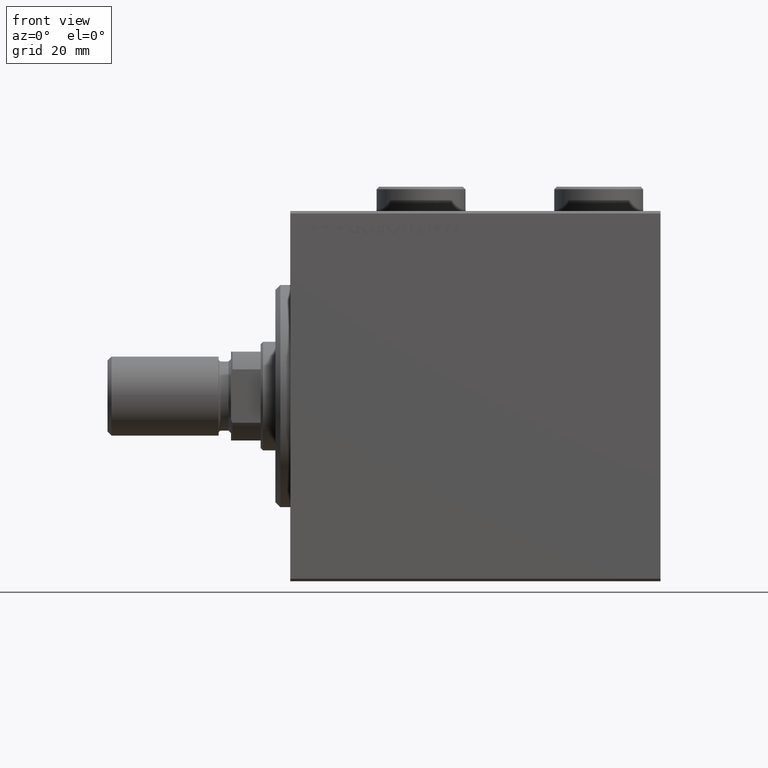
[diagram: clean part render]
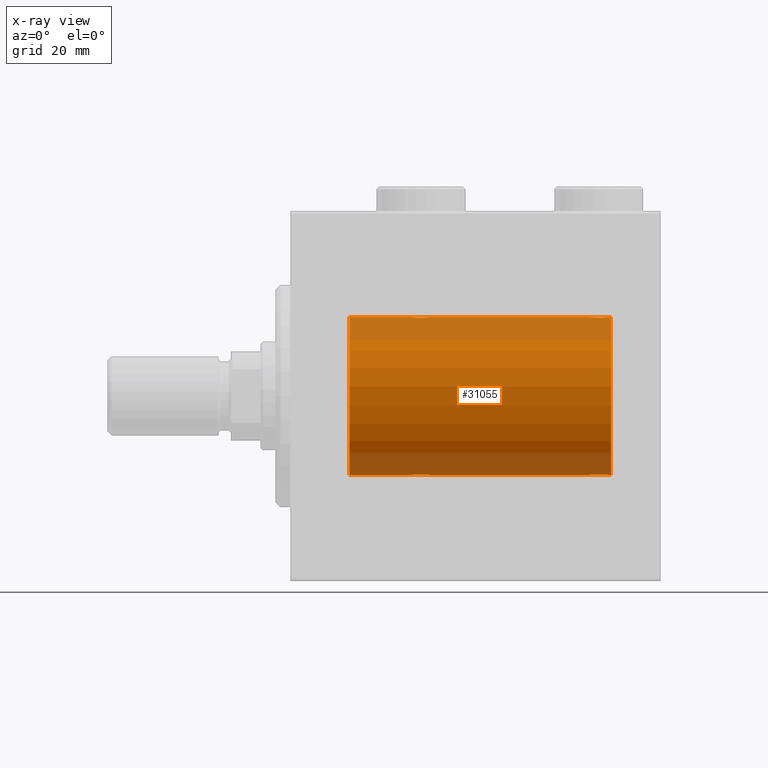
[diagram: x-ray — body ghosted, one internal face saturated and labeled with its STEP entity id]
A machine part, front view, then the same camera in x-ray: the body is ghosted and one INTERNAL B-rep face — a face not visible from any outside direction — is saturated and labeled: STEP entity #31055.
In plain terms, the highlighted cylindrical surface (partial cylindrical patch) has radius 16 mm, axis along (-1, -0, -0).
Its self-contained STEP definition (entity closure, byte-faithful):
#200 = VERTEX_POINT ( 'NONE', #42816 ) ;
#208 = CARTESIAN_POINT ( 'NONE',  ( 24.50000000000000355, -0.2611263091397209579, 16.00000000000000000 ) ) ;
#384 = CARTESIAN_POINT ( 'NONE',  ( 60.90236864042802267, -1.231048876942808956, -15.95364199493483426 ) ) ;
#900 = CARTESIAN_POINT ( 'NONE',  ( 27.82104334803405266, -1.507256214862787713, 15.92911555180482530 ) ) ;
#1117 = CARTESIAN_POINT ( 'NONE',  ( 28.49999999999999645, -1.207828523974853969E-15, 16.00000000000000000 ) ) ;
#1683 = CARTESIAN_POINT ( 'NONE',  ( 63.71821872840284584, -1.591545514129670380, 15.92081325887754950 ) ) ;
#1758 = ORIENTED_EDGE ( 'NONE', *, *, #35166, .F. ) ;
#1915 = CARTESIAN_POINT ( 'NONE',  ( 61.85363637129541559, -1.897207606501642774, 15.88720136683947537 ) ) ;
#2143 = CARTESIAN_POINT ( 'NONE',  ( 26.36919591423421494, -2.000094120337574388, -15.87449600834270669 ) ) ;
#2387 = CARTESIAN_POINT ( 'NONE',  ( 63.50078365753401499, -1.736521253711142521, 15.90565326803670665 ) ) ;
#3208 = CARTESIAN_POINT ( 'NONE',  ( 64.09938581325380369, -1.228793614424120051, -15.95381972293796480 ) ) ;
#3332 = DIRECTION ( 'NONE',  ( -1.000000000000000000, -0.000000000000000000, -0.000000000000000000 ) ) ;
#3654 = CARTESIAN_POINT ( 'NONE',  ( 63.50320784791315987, -1.735114343256370040, -15.90580722143557502 ) ) ;
#3704 = CARTESIAN_POINT ( 'NONE',  ( 26.23629537121825095, -1.986819684797424435, 15.87618369521983475 ) ) ;
#3716 = CARTESIAN_POINT ( 'NONE',  ( 65.00000000000000000, 1.959434878635765131E-15, -16.00000000000000000 ) ) ;
#3750 = CARTESIAN_POINT ( 'NONE',  ( 25.61407850031505262, -1.797863738508699516, -15.89874935709250892 ) ) ;
#3936 = DIRECTION ( 'NONE',  ( -1.000000000000000000, -0.000000000000000000, -0.000000000000000000 ) ) ;
#3952 = DIRECTION ( 'NONE',  ( -1.000000000000000000, -0.000000000000000000, -0.000000000000000000 ) ) ;
#4115 = CARTESIAN_POINT ( 'NONE',  ( 60.49999999999999289, -0.2645044045393447618, -16.00000000000000355 ) ) ;
#4165 = ORIENTED_EDGE ( 'NONE', *, *, #18533, .F. ) ;
#4239 = LINE ( 'NONE', #43317, #28932 ) ;
#4628 = EDGE_CURVE ( 'NONE', #6620, #29208, #45705, .T. ) ;
#5642 = CARTESIAN_POINT ( 'NONE',  ( 62.76082820349364511, -1.987201773464424504, 15.87613558886576115 ) ) ;
#5653 = ORIENTED_EDGE ( 'NONE', *, *, #40179, .T. ) ;
#6065 = VERTEX_POINT ( 'NONE', #33673 ) ;
#6338 = CARTESIAN_POINT ( 'NONE',  ( 26.23917179650635845, -1.987201773464429833, -15.87613558886576115 ) ) ;
#6620 = VERTEX_POINT ( 'NONE', #6807 ) ;
#6621 = DIRECTION ( 'NONE',  ( -1.000000000000000000, -0.000000000000000000, -0.000000000000000000 ) ) ;
#6801 = CARTESIAN_POINT ( 'NONE',  ( 24.75321871145306574, -1.008257970366812195, -15.97001510549667458 ) ) ;
#6807 = CARTESIAN_POINT ( 'NONE',  ( 24.50000000000000000, -2.745261152005884500E-15, -16.00000000000000000 ) ) ;
#6928 = CARTESIAN_POINT ( 'NONE',  ( 61.98335998918948775, -1.936513707523816574, -15.88239801746205515 ) ) ;
#6974 = CARTESIAN_POINT ( 'NONE',  ( 65.00000000000000000, 0.000000000000000000, 0.000000000000000000 ) ) ;
#7192 = CARTESIAN_POINT ( 'NONE',  ( 25.61153859170720537, -1.796613193944160969, 15.89889131367403685 ) ) ;
#7414 = CARTESIAN_POINT ( 'NONE',  ( 27.01664001081050515, -1.936513707523814354, 15.88239801746204805 ) ) ;
#7601 = CARTESIAN_POINT ( 'NONE',  ( 61.17895665196596156, -1.507256214862792820, -15.92911555180481820 ) ) ;
#7666 = ORIENTED_EDGE ( 'NONE', *, *, #16551, .T. ) ;
#7755 = ORIENTED_EDGE ( 'NONE', *, *, #42870, .F. ) ;
#7825 = B_SPLINE_CURVE_WITH_KNOTS ( 'NONE', 3,
 ( #9358, #41704, #45182, #13296, #27488, #9814, #27031, #24005, #44482, #20517, #38206, #41012, #41247, #2143, #6338, #35621, #45868, #3750, #27724, #10046, #24685, #31224, #6801, #27951, #10269, #34949 ),
 .UNSPECIFIED., .F., .F.,
 ( 4, 2, 2, 2, 2, 2, 2, 2, 2, 2, 2, 2, 4 ),
 ( 0.006259031236593879007, 0.007041222816026946295, 0.007823414395460014450, 0.008214510185176547227, 0.008605605974893081739, 0.008996701764609614516, 0.009387797554326147292, 0.009778893344042681804, 0.01016998913375921632, 0.01056108492347574909, 0.01095218071319228187, 0.01173437229262534742, 0.01251656387205841471 ),
 .UNSPECIFIED. ) ;
#7901 = CARTESIAN_POINT ( 'NONE',  ( 65.00000000000000000, 0.000000000000000000, 16.00000000000000000 ) ) ;
#9124 = CARTESIAN_POINT ( 'NONE',  ( 61.49679215208682592, -1.735114343256364711, 15.90580722143557502 ) ) ;
#9358 = CARTESIAN_POINT ( 'NONE',  ( 28.49999999999999645, 1.959434851238818770E-15, -16.00000000000000000 ) ) ;
#9814 = CARTESIAN_POINT ( 'NONE',  ( 27.82304844713206293, -1.505501573616970568, -15.92928245046054769 ) ) ;
#10046 = CARTESIAN_POINT ( 'NONE',  ( 25.28178127159715416, -1.591545514129671046, -15.92081325887754950 ) ) ;
#10204 = ORIENTED_EDGE ( 'NONE', *, *, #45063, .T. ) ;
#10269 = CARTESIAN_POINT ( 'NONE',  ( 24.50000000000001066, -0.2645044045393414867, -16.00000000000000711 ) ) ;
#10399 = CARTESIAN_POINT ( 'NONE',  ( 62.63366663175617788, -1.999904855391111846, -15.87451985347842331 ) ) ;
#10665 = DIRECTION ( 'NONE',  ( 0.000000000000000000, 0.000000000000000000, 1.000000000000000000 ) ) ;
#10851 = EDGE_CURVE ( 'NONE', #19034, #41707, #38854, .T. ) ;
#10972 = LINE ( 'NONE', #20790, #15192 ) ;
#11111 = CARTESIAN_POINT ( 'NONE',  ( 27.50078365753405407, -1.736521253711149182, 15.90565326803671375 ) ) ;
#12604 = CARTESIAN_POINT ( 'NONE',  ( 60.90061418674617499, -1.228793614424115166, 15.95381972293796835 ) ) ;
#12835 = EDGE_LOOP ( 'NONE', ( #7755, #36454, #7666, #10204, #21875, #31687, #17779, #1758, #42163, #4165, #5653, #40714 ) ) ;
#12837 = CARTESIAN_POINT ( 'NONE',  ( 62.63080408576578151, -2.000094120337570835, 15.87449600834271024 ) ) ;
#13072 = CARTESIAN_POINT ( 'NONE',  ( 64.09763135957199154, -1.231048876942787196, 15.95364199493483781 ) ) ;
#13224 = EDGE_CURVE ( 'NONE', #22929, #33676, #10972, .T. ) ;
#13296 = CARTESIAN_POINT ( 'NONE',  ( 28.24816627006210368, -1.005876079953898605, -15.97016854943969832 ) ) ;
#13816 = CARTESIAN_POINT ( 'NONE',  ( 65.00000000000000000, 1.959434878635765131E-15, -16.00000000000000000 ) ) ;
#14110 = CARTESIAN_POINT ( 'NONE',  ( 63.72028033478409270, -1.589957129871035546, -15.92097237843274549 ) ) ;
#14160 = CARTESIAN_POINT ( 'NONE',  ( 25.27971966521589664, -1.589957129871035768, 15.92097237843274549 ) ) ;
#14336 = CARTESIAN_POINT ( 'NONE',  ( 64.44751141031268560, -0.5244724041436317208, -15.99321727742820620 ) ) ;
#14551 = CARTESIAN_POINT ( 'NONE',  ( 64.50000000000000000, 1.959434851248285101E-15, -16.00000000000000000 ) ) ;
#14564 = CARTESIAN_POINT ( 'NONE',  ( 64.50000000000000000, -0.2611263091397180713, -16.00000000000000355 ) ) ;
#14772 = AXIS2_PLACEMENT_3D ( 'NONE', #19789, #15366, #37483 ) ;
#14837 = CARTESIAN_POINT ( 'NONE',  ( 28.44674004695639624, -0.5272875822566815973, 15.99312147175146670 ) ) ;
#14840 = VECTOR ( 'NONE', #3952, 1000.000000000000000 ) ;
#15192 = VECTOR ( 'NONE', #24727, 1000.000000000000000 ) ;
#15366 = DIRECTION ( 'NONE',  ( -1.000000000000000000, 0.000000000000000000, 0.000000000000000000 ) ) ;
#15478 = B_SPLINE_CURVE_WITH_KNOTS ( 'NONE', 3,
 ( #30992, #37972, #20049, #37514, #12604, #34255, #30288, #9124, #16793, #1915, #16325, #24004, #38204, #12837, #5642, #33555, #27028, #41246, #2387, #1683, #44953, #13072, #44481, #44252, #41474, #26550 ),
 .UNSPECIFIED., .F., .F.,
 ( 4, 2, 2, 2, 2, 2, 2, 2, 2, 2, 2, 2, 4 ),
 ( 0.006259031236593833904, 0.007041222816026886447, 0.007823414395459939857, 0.008214510185176465695, 0.008605605974892991533, 0.008996701764609517371, 0.009387797554326043209, 0.009778893344042589864, 0.01016998913375913652, 0.01056108492347568317, 0.01095218071319222809, 0.01173437229262529191, 0.01251656387205835400 ),
 .UNSPECIFIED. ) ;
#16052 = B_SPLINE_CURVE_WITH_KNOTS ( 'NONE', 3,
 ( #42119, #208, #17437, #17660, #45826, #31861, #14160, #28359, #7192, #42560, #39059, #3704, #28577, #25074, #39281, #7414, #35802, #36946, #11111, #25307, #900, #40206, #43692, #14837, #25540, #1117 ),
 .UNSPECIFIED., .F., .F.,
 ( 4, 2, 2, 2, 2, 2, 2, 2, 2, 2, 2, 2, 4 ),
 ( 0.006259031236593858190, 0.007041222816026928080, 0.007823414395459998838, 0.008214510185176533349, 0.008605605974893067861, 0.008996701764609604107, 0.009387797554326138619, 0.009778893344042673130, 0.01016998913375920938, 0.01056108492347574389, 0.01095218071319227840, 0.01173437229262534048, 0.01251656387205840430 ),
 .UNSPECIFIED. ) ;
#16325 = CARTESIAN_POINT ( 'NONE',  ( 61.98062885452072379, -1.935780515549986980, 15.88248768234623576 ) ) ;
#16551 = EDGE_CURVE ( 'NONE', #41707, #43471, #30928, .T. ) ;
#16793 = CARTESIAN_POINT ( 'NONE',  ( 61.61153859170720182, -1.796613193944150311, 15.89889131367403685 ) ) ;
#17393 = CARTESIAN_POINT ( 'NONE',  ( 63.01937114547926910, -1.935780515549996306, -15.88248768234623221 ) ) ;
#17437 = CARTESIAN_POINT ( 'NONE',  ( 24.55248858968731085, -0.5244724041436337192, 15.99321727742820975 ) ) ;
#17660 = CARTESIAN_POINT ( 'NONE',  ( 24.75183372993787856, -1.005876079953904600, 15.97016854943970543 ) ) ;
#17779 = ORIENTED_EDGE ( 'NONE', *, *, #45464, .T. ) ;
#18061 = CARTESIAN_POINT ( 'NONE',  ( 63.38846140829282660, -1.796613193944156084, -15.89889131367402975 ) ) ;
#18533 = EDGE_CURVE ( 'NONE', #200, #19998, #38867, .T. ) ;
#19034 = VERTEX_POINT ( 'NONE', #39197 ) ;
#19789 = CARTESIAN_POINT ( 'NONE',  ( 65.00000000000000000, 0.000000000000000000, 0.000000000000000000 ) ) ;
#19998 = VERTEX_POINT ( 'NONE', #28000 ) ;
#20049 = CARTESIAN_POINT ( 'NONE',  ( 60.55248858968734282, -0.5244724041436312767, 15.99321727742821686 ) ) ;
#20517 = CARTESIAN_POINT ( 'NONE',  ( 27.14636362870457731, -1.897207606501644550, -15.88720136683946826 ) ) ;
#20790 = CARTESIAN_POINT ( 'NONE',  ( 65.00000000000000000, 0.000000000000000000, 16.00000000000000000 ) ) ;
#21107 = CARTESIAN_POINT ( 'NONE',  ( 61.85623329282659455, -1.898087287925307232, -15.88709570026284545 ) ) ;
#21776 = CARTESIAN_POINT ( 'NONE',  ( 63.14636362870457020, -1.897207606501650989, -15.88720136683947182 ) ) ;
#21875 = ORIENTED_EDGE ( 'NONE', *, *, #30056, .T. ) ;
#22589 = CARTESIAN_POINT ( 'NONE',  ( 11.99999999999999645, 0.000000000000000000, 16.00000000000000000 ) ) ;
#22929 = VERTEX_POINT ( 'NONE', #27404 ) ;
#23319 = VERTEX_POINT ( 'NONE', #22589 ) ;
#23808 = CARTESIAN_POINT ( 'NONE',  ( 11.99999999999999645, 0.000000000000000000, 0.000000000000000000 ) ) ;
#24004 = CARTESIAN_POINT ( 'NONE',  ( 62.23629537121826871, -1.986819684797415331, 15.87618369521984896 ) ) ;
#24005 = CARTESIAN_POINT ( 'NONE',  ( 27.50320784791318118, -1.735114343256362712, -15.90580722143558212 ) ) ;
#24594 = CARTESIAN_POINT ( 'NONE',  ( 62.23917179650635489, -1.987201773464436716, -15.87613558886576826 ) ) ;
#24685 = CARTESIAN_POINT ( 'NONE',  ( 25.17895665196595445, -1.507256214862784383, -15.92911555180481820 ) ) ;
#24727 = DIRECTION ( 'NONE',  ( -1.000000000000000000, -0.000000000000000000, -0.000000000000000000 ) ) ;
#25031 = CARTESIAN_POINT ( 'NONE',  ( 64.24816627006210012, -1.005876079953901048, -15.97016854943970188 ) ) ;
#25074 = CARTESIAN_POINT ( 'NONE',  ( 26.63080408576578861, -2.000094120337581050, 15.87449600834271735 ) ) ;
#25307 = CARTESIAN_POINT ( 'NONE',  ( 27.71821872840285295, -1.591545514129674821, 15.92081325887754595 ) ) ;
#25331 = DIRECTION ( 'NONE',  ( -1.000000000000000000, -0.000000000000000000, -0.000000000000000000 ) ) ;
#25540 = CARTESIAN_POINT ( 'NONE',  ( 28.49999999999999289, -0.2645044045393371013, 16.00000000000000000 ) ) ;
#26242 = CARTESIAN_POINT ( 'NONE',  ( 64.49999999999998579, 3.415560487804343463E-15, 16.00000000000000000 ) ) ;
#26358 = CARTESIAN_POINT ( 'NONE',  ( 28.49999999999999645, 1.959434851238818770E-15, -16.00000000000000000 ) ) ;
#26550 = CARTESIAN_POINT ( 'NONE',  ( 64.49999999999998579, 3.415560487804343463E-15, 16.00000000000000000 ) ) ;
#26902 = VERTEX_POINT ( 'NONE', #26358 ) ;
#27028 = CARTESIAN_POINT ( 'NONE',  ( 63.14376670717340545, -1.898087287925291466, 15.88709570026284190 ) ) ;
#27031 = CARTESIAN_POINT ( 'NONE',  ( 27.72028033478411757, -1.589957129871027330, -15.92097237843274904 ) ) ;
#27404 = CARTESIAN_POINT ( 'NONE',  ( 65.00000000000000000, 0.000000000000000000, 16.00000000000000000 ) ) ;
#27453 = AXIS2_PLACEMENT_3D ( 'NONE', #6974, #3936, #10665 ) ;
#27488 = CARTESIAN_POINT ( 'NONE',  ( 28.09938581325380369, -1.228793614424118497, -15.95381972293797013 ) ) ;
#27724 = CARTESIAN_POINT ( 'NONE',  ( 25.49921634246596369, -1.736521253711144741, -15.90565326803670665 ) ) ;
#27761 = DIRECTION ( 'NONE',  ( -1.000000000000000000, 0.000000000000000000, 0.000000000000000000 ) ) ;
#27951 = CARTESIAN_POINT ( 'NONE',  ( 24.55325995304361086, -0.5272875822566830406, -15.99312147175148091 ) ) ;
#28000 = CARTESIAN_POINT ( 'NONE',  ( 28.49999999999999645, -1.207828523974853969E-15, 16.00000000000000000 ) ) ;
#28085 = CARTESIAN_POINT ( 'NONE',  ( 62.76370462878178103, -1.986819684797425767, -15.87618369521983475 ) ) ;
#28309 = CARTESIAN_POINT ( 'NONE',  ( 61.49921634246595659, -1.736521253711153845, -15.90565326803670665 ) ) ;
#28359 = CARTESIAN_POINT ( 'NONE',  ( 25.49679215208682592, -1.735114343256370262, 15.90580722143557502 ) ) ;
#28577 = CARTESIAN_POINT ( 'NONE',  ( 26.36633336824380436, -1.999904855391111402, 15.87451985347842687 ) ) ;
#28754 = CARTESIAN_POINT ( 'NONE',  ( 60.75321871145306574, -1.008257970366820189, -15.97001510549667813 ) ) ;
#28932 = VECTOR ( 'NONE', #3332, 1000.000000000000000 ) ;
#29208 = VERTEX_POINT ( 'NONE', #42543 ) ;
#29671 = CARTESIAN_POINT ( 'NONE',  ( 60.49999999999999289, -9.573340169032840992E-15, -16.00000000000000000 ) ) ;
#30056 = EDGE_CURVE ( 'NONE', #26902, #6620, #7825, .T. ) ;
#30288 = CARTESIAN_POINT ( 'NONE',  ( 61.27971966521590730, -1.589957129871031549, 15.92097237843274549 ) ) ;
#30928 = B_SPLINE_CURVE_WITH_KNOTS ( 'NONE', 3,
 ( #38797, #14564, #14336, #25031, #3208, #39464, #14110, #3654, #18061, #21776, #17393, #28085, #10399, #32262, #24594, #6928, #21107, #35311, #28309, #39010, #7601, #384, #28754, #35978, #4115, #32489 ),
 .UNSPECIFIED., .F., .F.,
 ( 4, 2, 2, 2, 2, 2, 2, 2, 2, 2, 2, 2, 4 ),
 ( 0.006259031236593884211, 0.007041222816026949764, 0.007823414395460014450, 0.008214510185176547227, 0.008605605974893080004, 0.008996701764609611046, 0.009387797554326143823, 0.009778893344042676600, 0.01016998913375920938, 0.01056108492347574042, 0.01095218071319227146, 0.01173437229262535089, 0.01251656387205843032 ),
 .UNSPECIFIED. ) ;
#30992 = CARTESIAN_POINT ( 'NONE',  ( 60.50000000000000711, -2.739595594696790848E-23, 16.00000000000000000 ) ) ;
#31055 = ADVANCED_FACE ( 'NONE', ( #46048 ), #38393, .F. ) ;
#31147 = EDGE_CURVE ( 'NONE', #6065, #19998, #16052, .T. ) ;
#31224 = CARTESIAN_POINT ( 'NONE',  ( 24.90236864042801557, -1.231048876942801407, -15.95364199493483426 ) ) ;
#31256 = CIRCLE ( 'NONE', #34201, 16.00000000000000000 ) ;
#31687 = ORIENTED_EDGE ( 'NONE', *, *, #4628, .T. ) ;
#31861 = CARTESIAN_POINT ( 'NONE',  ( 25.17695155286792286, -1.505501573616977673, 15.92928245046054947 ) ) ;
#32262 = CARTESIAN_POINT ( 'NONE',  ( 62.36919591423421849, -2.000094120337583714, -15.87449600834270669 ) ) ;
#32323 = CARTESIAN_POINT ( 'NONE',  ( 65.00000000000000000, 1.959434878635765131E-15, -16.00000000000000000 ) ) ;
#32489 = CARTESIAN_POINT ( 'NONE',  ( 60.49999999999999289, -9.573340169032840992E-15, -16.00000000000000000 ) ) ;
#33067 = VECTOR ( 'NONE', #25331, 1000.000000000000000 ) ;
#33555 = CARTESIAN_POINT ( 'NONE',  ( 63.01664001081051936, -1.936513707523802585, 15.88239801746204805 ) ) ;
#33673 = CARTESIAN_POINT ( 'NONE',  ( 24.50000000000000000, -2.739635037742051899E-23, 16.00000000000000000 ) ) ;
#33676 = VERTEX_POINT ( 'NONE', #26242 ) ;
#34201 = AXIS2_PLACEMENT_3D ( 'NONE', #23808, #27761, #38012 ) ;
#34255 = CARTESIAN_POINT ( 'NONE',  ( 61.17695155286794062, -1.505501573616968791, 15.92928245046055302 ) ) ;
#34949 = CARTESIAN_POINT ( 'NONE',  ( 24.50000000000000000, -2.745261152005884500E-15, -16.00000000000000000 ) ) ;
#35143 = DIRECTION ( 'NONE',  ( -1.000000000000000000, -0.000000000000000000, -0.000000000000000000 ) ) ;
#35166 = EDGE_CURVE ( 'NONE', #6065, #23319, #4239, .T. ) ;
#35311 = CARTESIAN_POINT ( 'NONE',  ( 61.61407850031504552, -1.797863738508707510, -15.89874935709250892 ) ) ;
#35621 = CARTESIAN_POINT ( 'NONE',  ( 25.98335998918948775, -1.936513707523809469, -15.88239801746204805 ) ) ;
#35802 = CARTESIAN_POINT ( 'NONE',  ( 27.14376670717340545, -1.898087287925302125, 15.88709570026284545 ) ) ;
#35978 = CARTESIAN_POINT ( 'NONE',  ( 60.55325995304358599, -0.5272875822566914783, -15.99312147175147025 ) ) ;
#36454 = ORIENTED_EDGE ( 'NONE', *, *, #10851, .T. ) ;
#36501 = LINE ( 'NONE', #32323, #14840 ) ;
#36946 = CARTESIAN_POINT ( 'NONE',  ( 27.38592149968496514, -1.797863738508701736, 15.89874935709250892 ) ) ;
#37483 = DIRECTION ( 'NONE',  ( 0.000000000000000000, 0.000000000000000000, 1.000000000000000000 ) ) ;
#37514 = CARTESIAN_POINT ( 'NONE',  ( 60.75183372993787145, -1.005876079953899493, 15.97016854943969832 ) ) ;
#37972 = CARTESIAN_POINT ( 'NONE',  ( 60.50000000000000711, -0.2611263091397199587, 16.00000000000000000 ) ) ;
#38012 = DIRECTION ( 'NONE',  ( 0.000000000000000000, 0.000000000000000000, 1.000000000000000000 ) ) ;
#38174 = VECTOR ( 'NONE', #35143, 1000.000000000000000 ) ;
#38204 = CARTESIAN_POINT ( 'NONE',  ( 62.36633336824382212, -1.999904855391102743, 15.87451985347842687 ) ) ;
#38206 = CARTESIAN_POINT ( 'NONE',  ( 27.01937114547927266, -1.935780515549990088, -15.88248768234623221 ) ) ;
#38393 = CYLINDRICAL_SURFACE ( 'NONE', #27453, 16.00000000000000000 ) ;
#38797 = CARTESIAN_POINT ( 'NONE',  ( 64.50000000000000000, 1.959434851248285101E-15, -16.00000000000000000 ) ) ;
#38854 = LINE ( 'NONE', #3716, #38174 ) ;
#38867 = LINE ( 'NONE', #7901, #33067 ) ;
#39010 = CARTESIAN_POINT ( 'NONE',  ( 61.28178127159713284, -1.591545514129680150, -15.92081325887754417 ) ) ;
#39059 = CARTESIAN_POINT ( 'NONE',  ( 25.98062885452072734, -1.935780515549995862, 15.88248768234623221 ) ) ;
#39197 = CARTESIAN_POINT ( 'NONE',  ( 65.00000000000000000, 1.959434878635765131E-15, -16.00000000000000000 ) ) ;
#39281 = CARTESIAN_POINT ( 'NONE',  ( 26.76082820349364866, -1.987201773464435828, 15.87613558886576470 ) ) ;
#39464 = CARTESIAN_POINT ( 'NONE',  ( 63.82304844713207359, -1.505501573616973898, -15.92928245046055302 ) ) ;
#40179 = EDGE_CURVE ( 'NONE', #200, #33676, #15478, .T. ) ;
#40206 = CARTESIAN_POINT ( 'NONE',  ( 28.09763135957198799, -1.231048876942802961, 15.95364199493483781 ) ) ;
#40714 = ORIENTED_EDGE ( 'NONE', *, *, #13224, .F. ) ;
#41012 = CARTESIAN_POINT ( 'NONE',  ( 26.76370462878175971, -1.986819684797417995, -15.87618369521984185 ) ) ;
#41246 = CARTESIAN_POINT ( 'NONE',  ( 63.38592149968495448, -1.797863738508690190, 15.89874935709250181 ) ) ;
#41247 = CARTESIAN_POINT ( 'NONE',  ( 26.63366663175618854, -1.999904855391105851, -15.87451985347842687 ) ) ;
#41474 = CARTESIAN_POINT ( 'NONE',  ( 64.50000000000002842, -0.2645044045393374899, 16.00000000000000711 ) ) ;
#41704 = CARTESIAN_POINT ( 'NONE',  ( 28.50000000000000000, -0.2611263091397177383, -16.00000000000000000 ) ) ;
#41707 = VERTEX_POINT ( 'NONE', #14551 ) ;
#42119 = CARTESIAN_POINT ( 'NONE',  ( 24.50000000000000000, -2.739635037742051899E-23, 16.00000000000000000 ) ) ;
#42163 = ORIENTED_EDGE ( 'NONE', *, *, #31147, .T. ) ;
#42543 = CARTESIAN_POINT ( 'NONE',  ( 11.99999999999999645, 1.959434878635765131E-15, -16.00000000000000000 ) ) ;
#42560 = CARTESIAN_POINT ( 'NONE',  ( 25.85363637129542624, -1.897207606501653432, 15.88720136683947182 ) ) ;
#42816 = CARTESIAN_POINT ( 'NONE',  ( 60.50000000000000711, -2.739595594696790848E-23, 16.00000000000000000 ) ) ;
#42870 = EDGE_CURVE ( 'NONE', #19034, #22929, #43784, .T. ) ;
#43220 = VECTOR ( 'NONE', #6621, 1000.000000000000000 ) ;
#43317 = CARTESIAN_POINT ( 'NONE',  ( 65.00000000000000000, 0.000000000000000000, 16.00000000000000000 ) ) ;
#43471 = VERTEX_POINT ( 'NONE', #29671 ) ;
#43692 = CARTESIAN_POINT ( 'NONE',  ( 28.24678128854693426, -1.008257970366811751, 15.97001510549667103 ) ) ;
#43784 = CIRCLE ( 'NONE', #14772, 16.00000000000000000 ) ;
#44252 = CARTESIAN_POINT ( 'NONE',  ( 64.44674004695637848, -0.5272875822566772674, 15.99312147175147381 ) ) ;
#44481 = CARTESIAN_POINT ( 'NONE',  ( 64.24678128854692716, -1.008257970366806422, 15.97001510549667458 ) ) ;
#44482 = CARTESIAN_POINT ( 'NONE',  ( 27.38846140829281595, -1.796613193944150755, -15.89889131367402975 ) ) ;
#44953 = CARTESIAN_POINT ( 'NONE',  ( 63.82104334803405266, -1.507256214862773058, 15.92911555180482175 ) ) ;
#45063 = EDGE_CURVE ( 'NONE', #43471, #26902, #36501, .T. ) ;
#45182 = CARTESIAN_POINT ( 'NONE',  ( 28.44751141031269626, -0.5244724041436300555, -15.99321727742820975 ) ) ;
#45464 = EDGE_CURVE ( 'NONE', #29208, #23319, #31256, .T. ) ;
#45705 = LINE ( 'NONE', #13816, #43220 ) ;
#45826 = CARTESIAN_POINT ( 'NONE',  ( 24.90061418674620342, -1.228793614424124714, 15.95381972293797368 ) ) ;
#45868 = CARTESIAN_POINT ( 'NONE',  ( 25.85623329282659455, -1.898087287925299016, -15.88709570026284545 ) ) ;
#46048 = FACE_OUTER_BOUND ( 'NONE', #12835, .T. ) ;